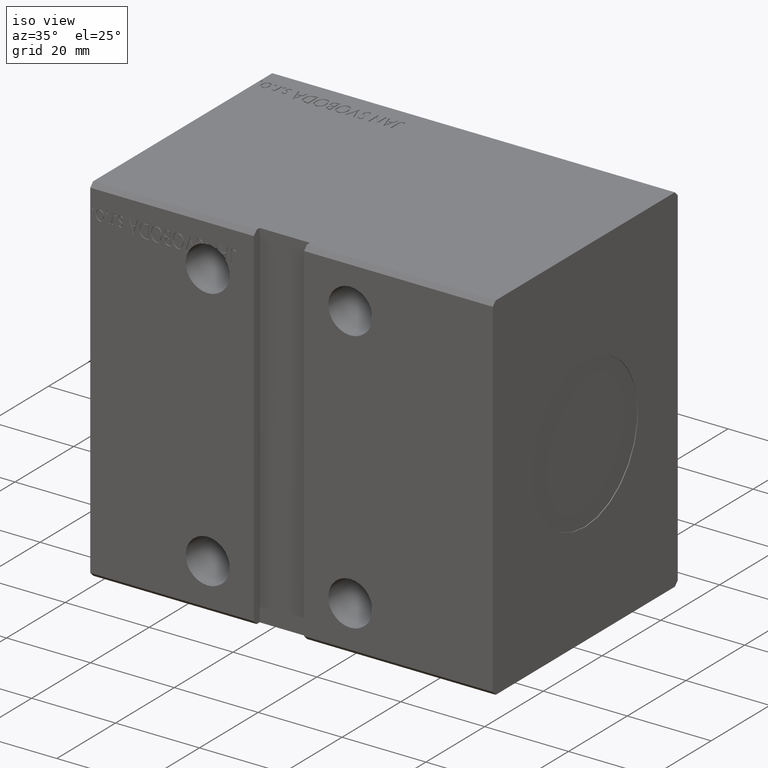
[diagram: clean part render]
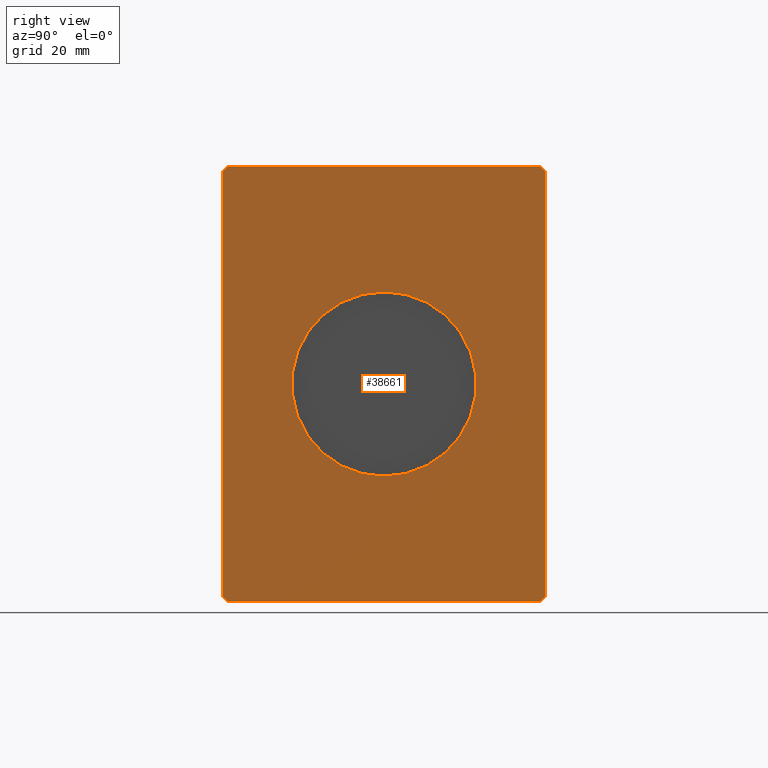
[diagram: tour spotlight — one face highlighted and labeled with its STEP entity id]
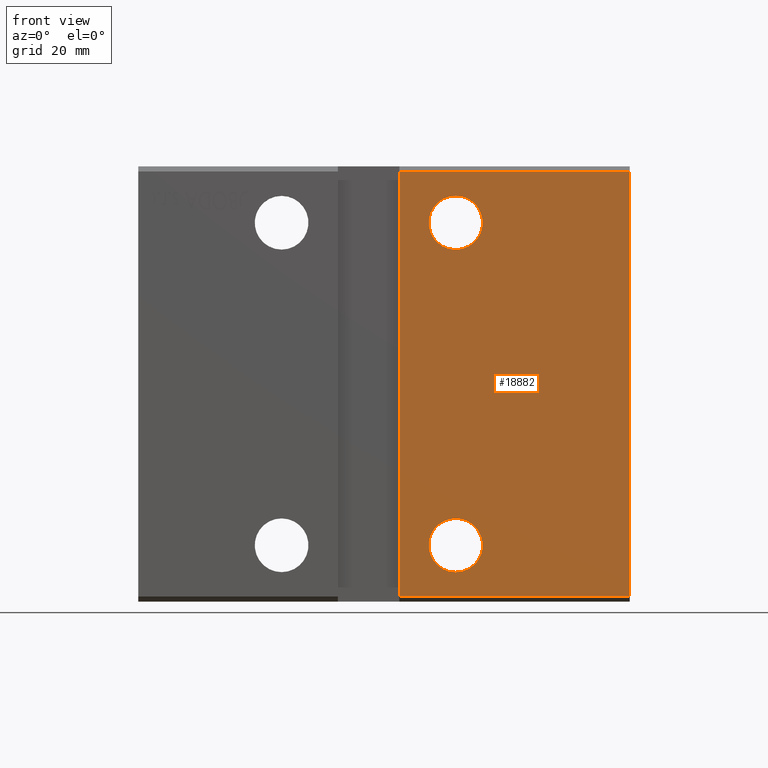
[diagram: tour spotlight — one face highlighted and labeled with its STEP entity id]
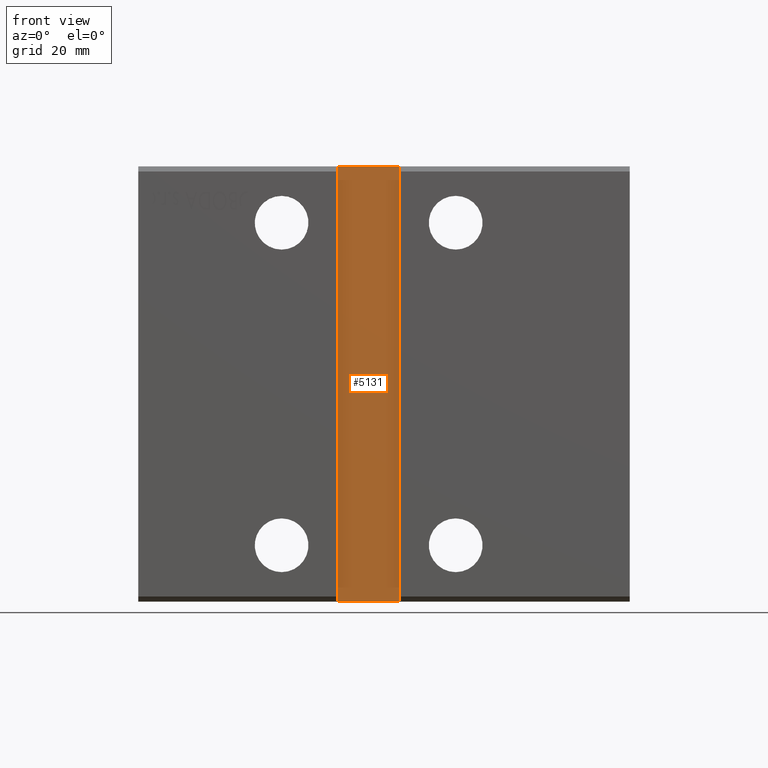
[diagram: tour spotlight — one face highlighted and labeled with its STEP entity id]
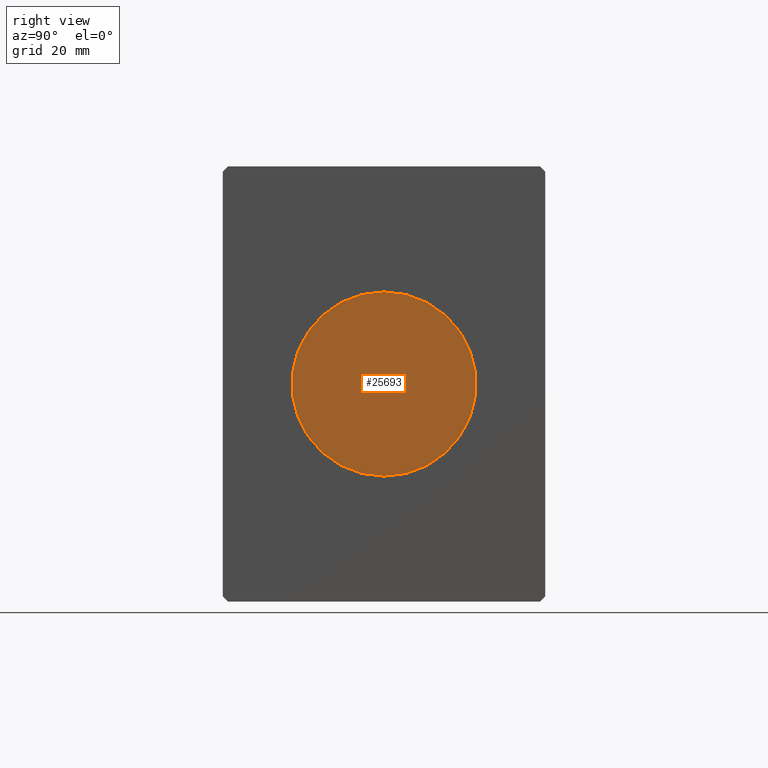
[diagram: tour spotlight — one face highlighted and labeled with its STEP entity id]
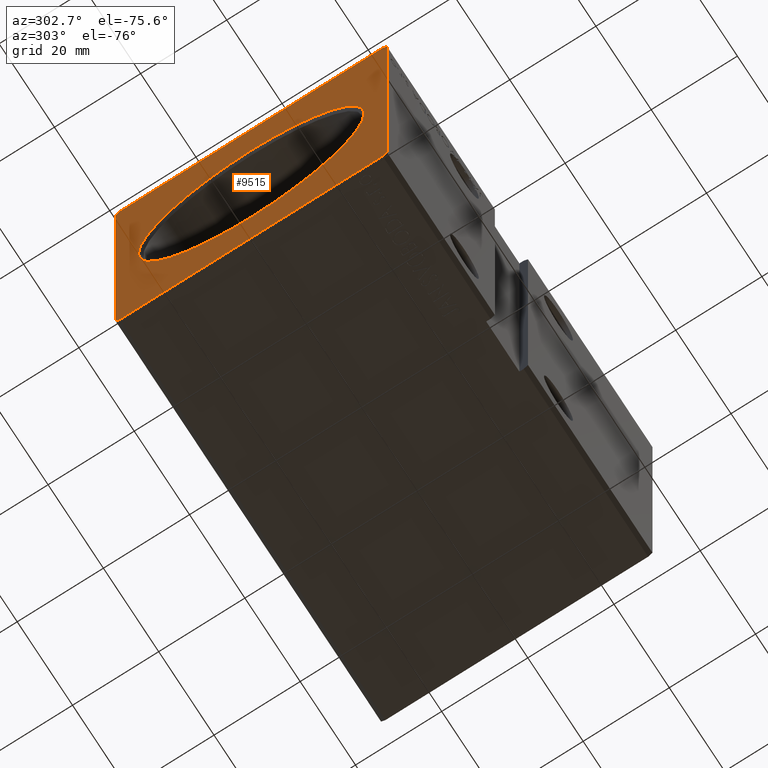
[diagram: tour spotlight — one face highlighted and labeled with its STEP entity id]
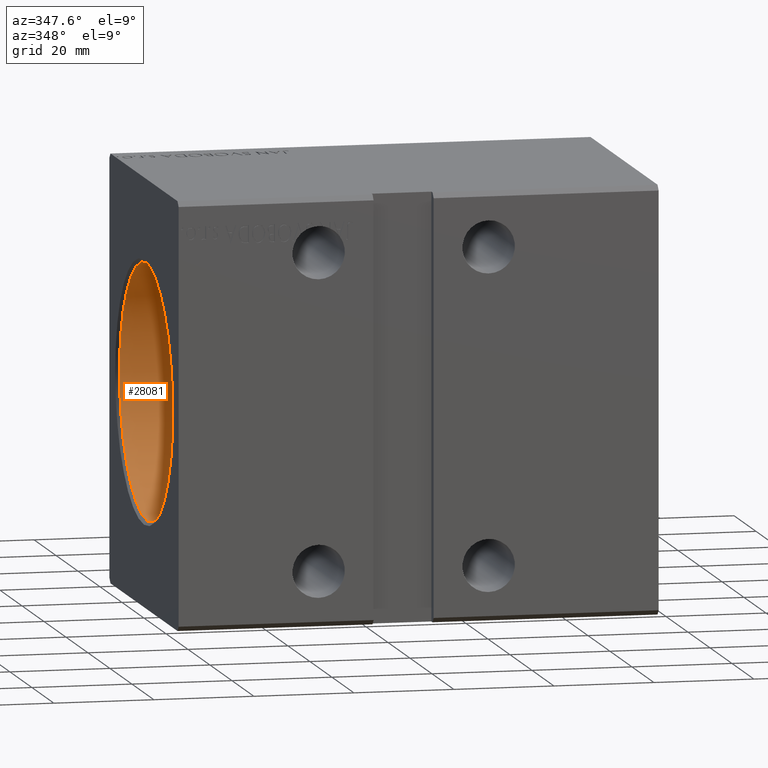
[diagram: tour spotlight — one face highlighted and labeled with its STEP entity id]
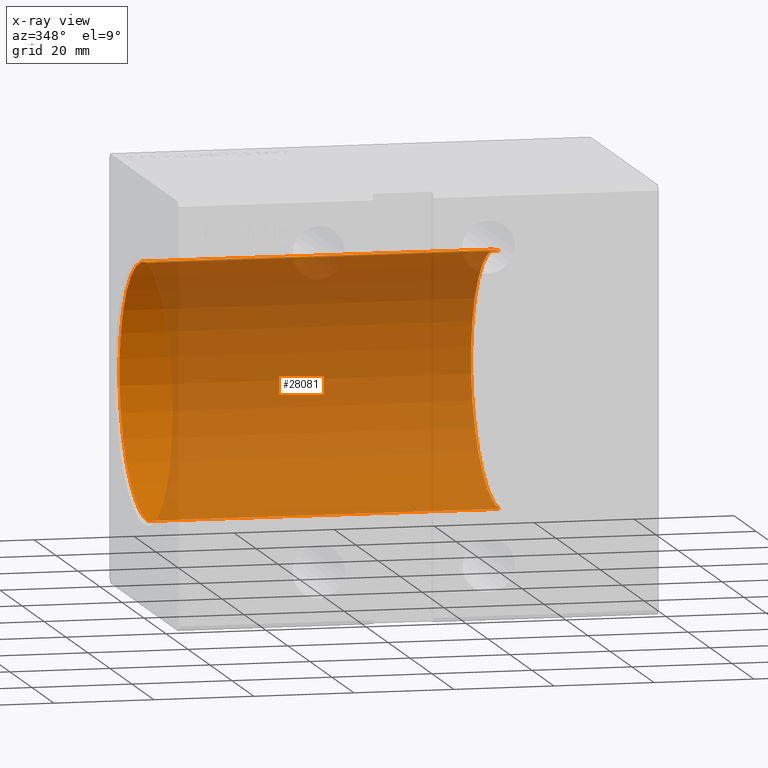
[diagram: x-ray of the same camera — body ghosted, this tour face saturated]
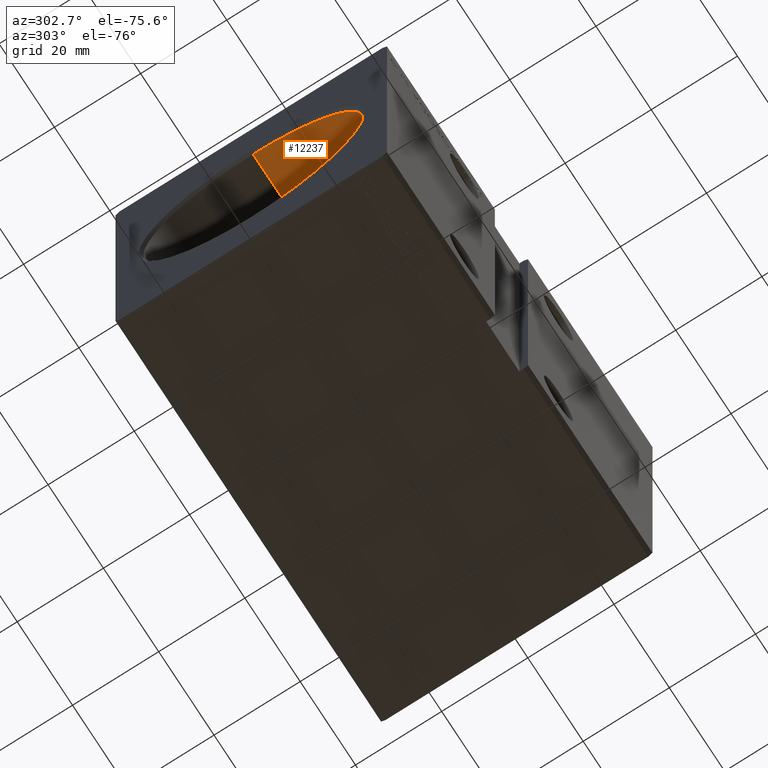
[diagram: tour spotlight — one face highlighted and labeled with its STEP entity id]
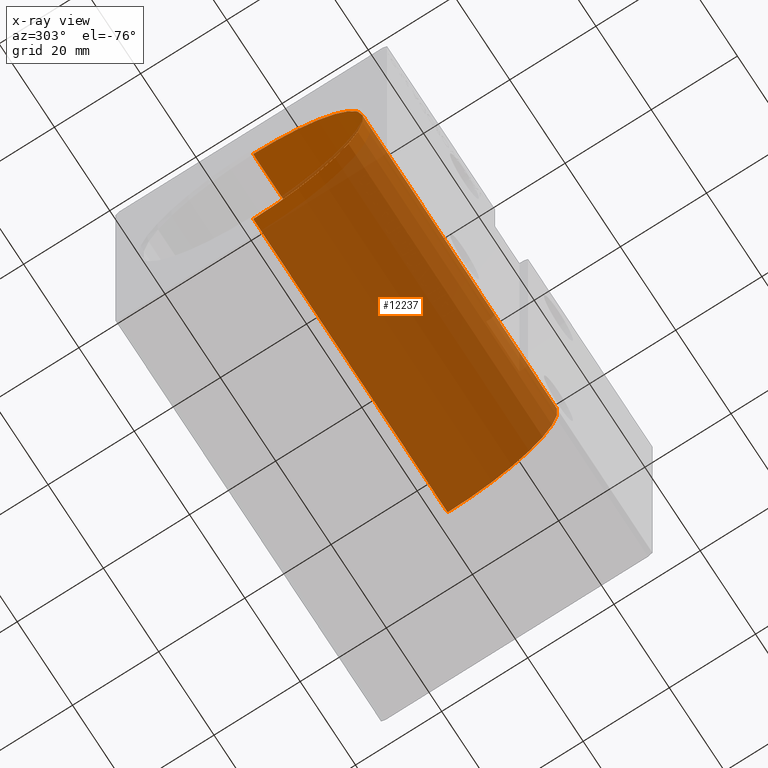
[diagram: x-ray of the same camera — body ghosted, this tour face saturated]
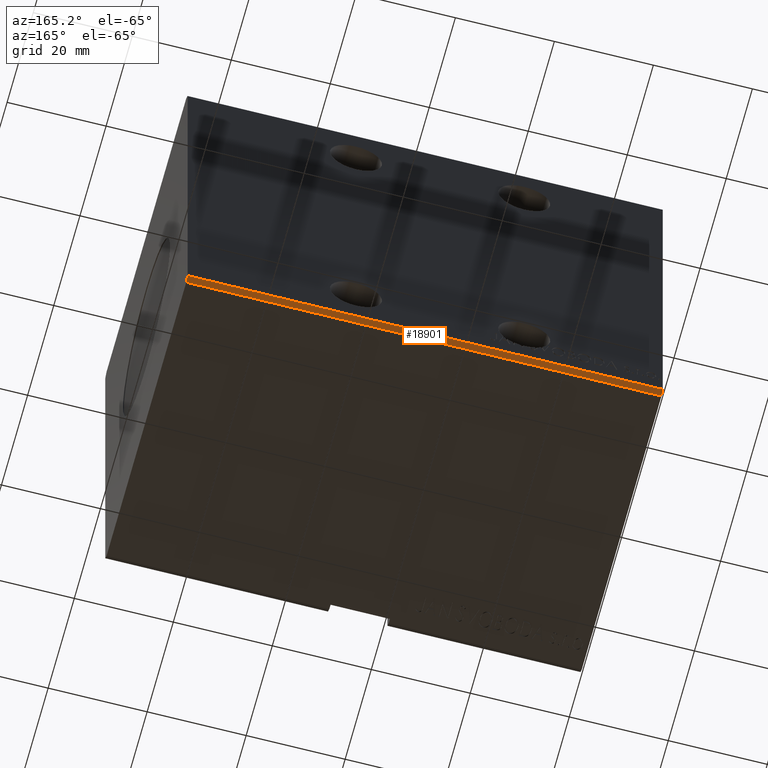
[diagram: tour spotlight — one face highlighted and labeled with its STEP entity id]
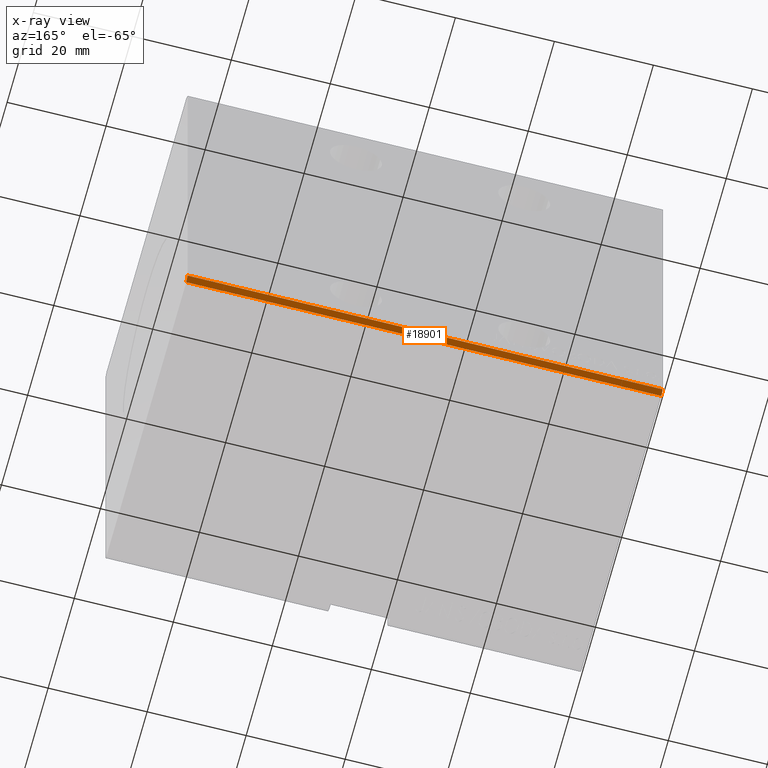
[diagram: x-ray of the same camera — body ghosted, this tour face saturated]
A machine part: a face-by-face anatomy tour. The part has 755 B-rep faces; the first image is the clean iso view, then the 8 largest visible faces are spotlighted one at a time (largest first), each with its STEP entity span.

Face 1 — right view, entity #38661. In plain terms, the highlighted planar face has unit normal (1, 0, 0).
Definition (entity closure, byte-faithful):
#281 = AXIS2_PLACEMENT_3D ( 'NONE', #39995, #6207, #21583 ) ;
#822 = VERTEX_POINT ( 'NONE', #25123 ) ;
#1911 = EDGE_CURVE ( 'NONE', #3032, #15900, #2587, .T. ) ;
#2118 = VERTEX_POINT ( 'NONE', #2344 ) ;
#2344 = CARTESIAN_POINT ( 'NONE',  ( 96.00000000000000000, 30.50000000000001421, 42.49999999999999289 ) ) ;
#2587 = LINE ( 'NONE', #36776, #24190 ) ;
#3032 = VERTEX_POINT ( 'NONE', #17837 ) ;
#4675 = CARTESIAN_POINT ( 'NONE',  ( 96.00000000000000000, -31.50000000000000000, 41.49999999999999289 ) ) ;
#4878 = LINE ( 'NONE', #11354, #6184 ) ;
#4896 = VECTOR ( 'NONE', #6964, 1000.000000000000000 ) ;
#4925 = AXIS2_PLACEMENT_3D ( 'NONE', #16355, #19397, #31137 ) ;
#5253 = DIRECTION ( 'NONE',  ( 0.000000000000000000, -0.7071067811865474617, 0.7071067811865474617 ) ) ;
#6075 = EDGE_CURVE ( 'NONE', #15900, #8573, #15465, .T. ) ;
#6091 = ORIENTED_EDGE ( 'NONE', *, *, #32495, .T. ) ;
#6158 = LINE ( 'NONE', #37328, #27493 ) ;
#6184 = VECTOR ( 'NONE', #23302, 1000.000000000000000 ) ;
#6207 = DIRECTION ( 'NONE',  ( 1.000000000000000000, 0.000000000000000000, 0.000000000000000000 ) ) ;
#6336 = ORIENTED_EDGE ( 'NONE', *, *, #8144, .F. ) ;
#6964 = DIRECTION ( 'NONE',  ( 0.000000000000000000, 1.000000000000000000, 0.000000000000000000 ) ) ;
#7809 = DIRECTION ( 'NONE',  ( 1.000000000000000000, 0.000000000000000000, 0.000000000000000000 ) ) ;
#7923 = CARTESIAN_POINT ( 'NONE',  ( 96.00000000000000000, 31.50000000000001421, 41.49999999999999289 ) ) ;
#8144 = EDGE_CURVE ( 'NONE', #31743, #822, #31414, .T. ) ;
#8573 = VERTEX_POINT ( 'NONE', #16220 ) ;
#9723 = CARTESIAN_POINT ( 'NONE',  ( 96.00000000000000000, 30.50000000000001776, -42.50000000000000711 ) ) ;
#9988 = VECTOR ( 'NONE', #37463, 999.9999999999998863 ) ;
#10603 = EDGE_CURVE ( 'NONE', #33563, #14110, #6158, .T. ) ;
#11354 = CARTESIAN_POINT ( 'NONE',  ( 96.00000000000000000, -31.50000000000000000, 41.49999999999999289 ) ) ;
#12518 = EDGE_CURVE ( 'NONE', #35869, #3032, #4878, .T. ) ;
#13561 = ORIENTED_EDGE ( 'NONE', *, *, #28572, .F. ) ;
#13884 = CARTESIAN_POINT ( 'NONE',  ( 96.00000000000000000, 0.000000000000000000, 0.000000000000000000 ) ) ;
#13888 = DIRECTION ( 'NONE',  ( 0.000000000000000000, -0.7071067811865462405, -0.7071067811865489050 ) ) ;
#14110 = VERTEX_POINT ( 'NONE', #7923 ) ;
#14157 = ORIENTED_EDGE ( 'NONE', *, *, #10603, .T. ) ;
#15465 = LINE ( 'NONE', #31649, #4896 ) ;
#15900 = VERTEX_POINT ( 'NONE', #21598 ) ;
#16220 = CARTESIAN_POINT ( 'NONE',  ( 96.00000000000000000, 30.50000000000001776, -42.50000000000000711 ) ) ;
#16355 = CARTESIAN_POINT ( 'NONE',  ( 96.00000000000000000, 0.000000000000000000, 0.000000000000000000 ) ) ;
#17679 = ORIENTED_EDGE ( 'NONE', *, *, #38961, .T. ) ;
#17837 = CARTESIAN_POINT ( 'NONE',  ( 96.00000000000000000, -31.50000000000000000, -41.50000000000000711 ) ) ;
#19017 = CARTESIAN_POINT ( 'NONE',  ( 96.00000000000000000, 30.50000000000001421, 42.49999999999999289 ) ) ;
#19161 = EDGE_CURVE ( 'NONE', #14110, #2118, #23282, .T. ) ;
#19397 = DIRECTION ( 'NONE',  ( 1.000000000000000000, 0.000000000000000000, 0.000000000000000000 ) ) ;
#20148 = AXIS2_PLACEMENT_3D ( 'NONE', #13884, #7809, #38761 ) ;
#20378 = VECTOR ( 'NONE', #5253, 1000.000000000000114 ) ;
#20733 = VERTEX_POINT ( 'NONE', #24382 ) ;
#21583 = DIRECTION ( 'NONE',  ( 0.000000000000000000, 0.000000000000000000, -1.000000000000000000 ) ) ;
#21598 = CARTESIAN_POINT ( 'NONE',  ( 96.00000000000000000, -30.50000000000000711, -42.50000000000000711 ) ) ;
#22077 = CIRCLE ( 'NONE', #20148, 18.00000000000000000 ) ;
#23282 = LINE ( 'NONE', #38842, #20378 ) ;
#23302 = DIRECTION ( 'NONE',  ( 0.000000000000000000, 0.000000000000000000, -1.000000000000000000 ) ) ;
#24190 = VECTOR ( 'NONE', #24632, 1000.000000000000114 ) ;
#24382 = CARTESIAN_POINT ( 'NONE',  ( 96.00000000000000000, -30.50000000000000355, 42.49999999999999289 ) ) ;
#24496 = DIRECTION ( 'NONE',  ( 0.000000000000000000, -1.000000000000000000, 0.000000000000000000 ) ) ;
#24632 = DIRECTION ( 'NONE',  ( 0.000000000000000000, 0.7071067811865451302, -0.7071067811865500152 ) ) ;
#25030 = FACE_BOUND ( 'NONE', #27612, .T. ) ;
#25119 = LINE ( 'NONE', #9723, #9988 ) ;
#25123 = CARTESIAN_POINT ( 'NONE',  ( 96.00000000000000000, 2.204364238465235428E-15, 18.00000000000000000 ) ) ;
#25664 = CARTESIAN_POINT ( 'NONE',  ( 96.00000000000000000, 31.50000000000001421, -41.50000000000000711 ) ) ;
#26838 = CARTESIAN_POINT ( 'NONE',  ( 96.00000000000000000, -30.50000000000000355, 42.49999999999999289 ) ) ;
#27493 = VECTOR ( 'NONE', #33685, 1000.000000000000000 ) ;
#27612 = EDGE_LOOP ( 'NONE', ( #6336, #13561 ) ) ;
#27809 = EDGE_LOOP ( 'NONE', ( #31588, #6091, #17679, #35709, #30736, #34254, #32191, #14157 ) ) ;
#28572 = EDGE_CURVE ( 'NONE', #822, #31743, #22077, .T. ) ;
#30736 = ORIENTED_EDGE ( 'NONE', *, *, #1911, .T. ) ;
#31137 = DIRECTION ( 'NONE',  ( 0.000000000000000000, 0.000000000000000000, -1.000000000000000000 ) ) ;
#31414 = CIRCLE ( 'NONE', #4925, 18.00000000000000000 ) ;
#31588 = ORIENTED_EDGE ( 'NONE', *, *, #19161, .T. ) ;
#31649 = CARTESIAN_POINT ( 'NONE',  ( 96.00000000000000000, -30.50000000000000711, -42.50000000000000711 ) ) ;
#31743 = VERTEX_POINT ( 'NONE', #34166 ) ;
#31956 = VECTOR ( 'NONE', #13888, 999.9999999999998863 ) ;
#32191 = ORIENTED_EDGE ( 'NONE', *, *, #38274, .T. ) ;
#32495 = EDGE_CURVE ( 'NONE', #2118, #20733, #34390, .T. ) ;
#32496 = LINE ( 'NONE', #26838, #31956 ) ;
#33563 = VERTEX_POINT ( 'NONE', #25664 ) ;
#33685 = DIRECTION ( 'NONE',  ( 0.000000000000000000, 0.000000000000000000, 1.000000000000000000 ) ) ;
#34166 = CARTESIAN_POINT ( 'NONE',  ( 96.00000000000000000, 0.000000000000000000, -18.00000000000000000 ) ) ;
#34254 = ORIENTED_EDGE ( 'NONE', *, *, #6075, .T. ) ;
#34324 = FACE_OUTER_BOUND ( 'NONE', #27809, .T. ) ;
#34390 = LINE ( 'NONE', #19017, #37008 ) ;
#35709 = ORIENTED_EDGE ( 'NONE', *, *, #12518, .T. ) ;
#35869 = VERTEX_POINT ( 'NONE', #4675 ) ;
#36776 = CARTESIAN_POINT ( 'NONE',  ( 96.00000000000000000, -31.50000000000000000, -41.50000000000000711 ) ) ;
#37008 = VECTOR ( 'NONE', #24496, 1000.000000000000000 ) ;
#37169 = PLANE ( 'NONE',  #281 ) ;
#37328 = CARTESIAN_POINT ( 'NONE',  ( 96.00000000000000000, 31.50000000000001421, -41.50000000000000711 ) ) ;
#37463 = DIRECTION ( 'NONE',  ( 0.000000000000000000, 0.7071067811865462405, 0.7071067811865489050 ) ) ;
#38274 = EDGE_CURVE ( 'NONE', #8573, #33563, #25119, .T. ) ;
#38661 = ADVANCED_FACE ( 'NONE', ( #25030, #34324 ), #37169, .T. ) ;
#38761 = DIRECTION ( 'NONE',  ( 0.000000000000000000, 0.000000000000000000, -1.000000000000000000 ) ) ;
#38842 = CARTESIAN_POINT ( 'NONE',  ( 96.00000000000000000, 31.50000000000001421, 41.49999999999999289 ) ) ;
#38961 = EDGE_CURVE ( 'NONE', #20733, #35869, #32496, .T. ) ;
#39995 = CARTESIAN_POINT ( 'NONE',  ( 96.00000000000000000, 0.000000000000000000, 0.000000000000000000 ) ) ;

Face 2 — front view, entity #18882. In plain terms, the highlighted planar face has unit normal (-0, 1, 0).
Definition (entity closure, byte-faithful):
#2280 = CARTESIAN_POINT ( 'NONE',  ( 62.00000000000000000, -31.50000000000000000, 36.75000000000000711 ) ) ;
#3032 = VERTEX_POINT ( 'NONE', #17837 ) ;
#3204 = DIRECTION ( 'NONE',  ( -8.163404592832032733E-17, -0.000000000000000000, 1.000000000000000000 ) ) ;
#4675 = CARTESIAN_POINT ( 'NONE',  ( 96.00000000000000000, -31.50000000000000000, 41.49999999999999289 ) ) ;
#4862 = CIRCLE ( 'NONE', #26255, 5.249999999999997335 ) ;
#4878 = LINE ( 'NONE', #11354, #6184 ) ;
#4906 = FACE_OUTER_BOUND ( 'NONE', #13778, .T. ) ;
#5343 = VERTEX_POINT ( 'NONE', #27263 ) ;
#5499 = FACE_BOUND ( 'NONE', #10590, .T. ) ;
#6184 = VECTOR ( 'NONE', #23302, 1000.000000000000000 ) ;
#6243 = CARTESIAN_POINT ( 'NONE',  ( 62.00000000000000000, -31.50000000000000000, 26.24999999999999645 ) ) ;
#7261 = CARTESIAN_POINT ( 'NONE',  ( 62.00000000000000711, -31.50000000000000000, -26.25000000000000355 ) ) ;
#8233 = CARTESIAN_POINT ( 'NONE',  ( 62.00000000000000000, -31.50000000000000000, 31.50000000000000000 ) ) ;
#8439 = ORIENTED_EDGE ( 'NONE', *, *, #26528, .F. ) ;
#9463 = CARTESIAN_POINT ( 'NONE',  ( 51.00000000000000000, -31.50000000000000000, 42.49999999999999289 ) ) ;
#10187 = CARTESIAN_POINT ( 'NONE',  ( 62.00000000000000711, -31.50000000000000000, -36.75000000000000000 ) ) ;
#10195 = CARTESIAN_POINT ( 'NONE',  ( 62.00000000000000711, -31.50000000000000000, -31.50000000000000000 ) ) ;
#10416 = CARTESIAN_POINT ( 'NONE',  ( 96.00000000000000000, -31.50000000000000000, 41.49999999999999289 ) ) ;
#10551 = AXIS2_PLACEMENT_3D ( 'NONE', #20380, #23822, #35960 ) ;
#10590 = EDGE_LOOP ( 'NONE', ( #14147, #39051 ) ) ;
#11026 = VERTEX_POINT ( 'NONE', #16804 ) ;
#11277 = CIRCLE ( 'NONE', #39058, 5.249999999999997335 ) ;
#11354 = CARTESIAN_POINT ( 'NONE',  ( 96.00000000000000000, -31.50000000000000000, 41.49999999999999289 ) ) ;
#11444 = VERTEX_POINT ( 'NONE', #10187 ) ;
#11947 = EDGE_CURVE ( 'NONE', #39584, #11444, #4862, .T. ) ;
#12518 = EDGE_CURVE ( 'NONE', #35869, #3032, #4878, .T. ) ;
#13151 = DIRECTION ( 'NONE',  ( 0.000000000000000000, -1.000000000000000000, -0.000000000000000000 ) ) ;
#13778 = EDGE_LOOP ( 'NONE', ( #31969, #24259, #8439, #29804 ) ) ;
#14147 = ORIENTED_EDGE ( 'NONE', *, *, #17260, .T. ) ;
#14807 = DIRECTION ( 'NONE',  ( 0.000000000000000000, -0.000000000000000000, 1.000000000000000000 ) ) ;
#16804 = CARTESIAN_POINT ( 'NONE',  ( 51.00000000000000711, -31.50000000000000000, -41.50000000000000711 ) ) ;
#17260 = EDGE_CURVE ( 'NONE', #11444, #39584, #11277, .T. ) ;
#17286 = CARTESIAN_POINT ( 'NONE',  ( 96.00000000000000000, -31.50000000000000000, -41.50000000000000711 ) ) ;
#17837 = CARTESIAN_POINT ( 'NONE',  ( 96.00000000000000000, -31.50000000000000000, -41.50000000000000711 ) ) ;
#17850 = CARTESIAN_POINT ( 'NONE',  ( 96.00000000000000000, -31.50000000000000000, 41.49999999999999289 ) ) ;
#18580 = LINE ( 'NONE', #9463, #36394 ) ;
#18882 = ADVANCED_FACE ( 'NONE', ( #5499, #4906, #26971 ), #36251, .F. ) ;
#19713 = DIRECTION ( 'NONE',  ( -0.000000000000000000, 1.000000000000000000, 0.000000000000000000 ) ) ;
#20380 = CARTESIAN_POINT ( 'NONE',  ( 62.00000000000000000, -31.50000000000000000, 31.50000000000000000 ) ) ;
#20819 = DIRECTION ( 'NONE',  ( -0.000000000000000000, 1.000000000000000000, 0.000000000000000000 ) ) ;
#21665 = AXIS2_PLACEMENT_3D ( 'NONE', #17850, #30192, #14807 ) ;
#22115 = EDGE_LOOP ( 'NONE', ( #31831, #29411 ) ) ;
#23302 = DIRECTION ( 'NONE',  ( 0.000000000000000000, 0.000000000000000000, -1.000000000000000000 ) ) ;
#23822 = DIRECTION ( 'NONE',  ( 0.000000000000000000, -1.000000000000000000, -0.000000000000000000 ) ) ;
#23987 = VECTOR ( 'NONE', #27001, 1000.000000000000000 ) ;
#24259 = ORIENTED_EDGE ( 'NONE', *, *, #33447, .F. ) ;
#25404 = AXIS2_PLACEMENT_3D ( 'NONE', #8233, #13151, #37840 ) ;
#26189 = DIRECTION ( 'NONE',  ( 0.000000000000000000, 0.000000000000000000, 1.000000000000000000 ) ) ;
#26255 = AXIS2_PLACEMENT_3D ( 'NONE', #10195, #19713, #26189 ) ;
#26528 = EDGE_CURVE ( 'NONE', #3032, #11026, #38730, .T. ) ;
#26971 = FACE_BOUND ( 'NONE', #22115, .T. ) ;
#27001 = DIRECTION ( 'NONE',  ( -1.000000000000000000, -0.000000000000000000, -0.000000000000000000 ) ) ;
#27263 = CARTESIAN_POINT ( 'NONE',  ( 51.00000000000000000, -31.50000000000000000, 41.49999999999999289 ) ) ;
#28003 = CIRCLE ( 'NONE', #10551, 5.250000000000004441 ) ;
#29411 = ORIENTED_EDGE ( 'NONE', *, *, #32526, .F. ) ;
#29804 = ORIENTED_EDGE ( 'NONE', *, *, #12518, .F. ) ;
#29912 = CIRCLE ( 'NONE', #25404, 5.250000000000004441 ) ;
#29929 = DIRECTION ( 'NONE',  ( 0.000000000000000000, 0.000000000000000000, 1.000000000000000000 ) ) ;
#30192 = DIRECTION ( 'NONE',  ( -0.000000000000000000, 1.000000000000000000, 0.000000000000000000 ) ) ;
#30328 = CARTESIAN_POINT ( 'NONE',  ( 62.00000000000000711, -31.50000000000000000, -31.50000000000000000 ) ) ;
#30564 = VECTOR ( 'NONE', #35107, 1000.000000000000000 ) ;
#31666 = VERTEX_POINT ( 'NONE', #6243 ) ;
#31831 = ORIENTED_EDGE ( 'NONE', *, *, #33637, .F. ) ;
#31969 = ORIENTED_EDGE ( 'NONE', *, *, #32851, .T. ) ;
#32526 = EDGE_CURVE ( 'NONE', #35707, #31666, #29912, .T. ) ;
#32851 = EDGE_CURVE ( 'NONE', #35869, #5343, #38146, .T. ) ;
#33447 = EDGE_CURVE ( 'NONE', #11026, #5343, #18580, .T. ) ;
#33637 = EDGE_CURVE ( 'NONE', #31666, #35707, #28003, .T. ) ;
#35107 = DIRECTION ( 'NONE',  ( -1.000000000000000000, -0.000000000000000000, -0.000000000000000000 ) ) ;
#35707 = VERTEX_POINT ( 'NONE', #2280 ) ;
#35869 = VERTEX_POINT ( 'NONE', #4675 ) ;
#35960 = DIRECTION ( 'NONE',  ( 0.000000000000000000, 0.000000000000000000, 1.000000000000000000 ) ) ;
#36251 = PLANE ( 'NONE',  #21665 ) ;
#36394 = VECTOR ( 'NONE', #3204, 1000.000000000000000 ) ;
#37840 = DIRECTION ( 'NONE',  ( 0.000000000000000000, 0.000000000000000000, 1.000000000000000000 ) ) ;
#38146 = LINE ( 'NONE', #10416, #30564 ) ;
#38730 = LINE ( 'NONE', #17286, #23987 ) ;
#39051 = ORIENTED_EDGE ( 'NONE', *, *, #11947, .T. ) ;
#39058 = AXIS2_PLACEMENT_3D ( 'NONE', #30328, #20819, #29929 ) ;
#39584 = VERTEX_POINT ( 'NONE', #7261 ) ;

Face 3 — front view, entity #5131. In plain terms, the highlighted planar face has unit normal (0, -1, 0).
Definition (entity closure, byte-faithful):
#523 = VERTEX_POINT ( 'NONE', #14415 ) ;
#2177 = CARTESIAN_POINT ( 'NONE',  ( 39.00000000000000000, -29.50000000000000000, 42.49999999999999289 ) ) ;
#5004 = EDGE_CURVE ( 'NONE', #32137, #25166, #34212, .T. ) ;
#5131 = ADVANCED_FACE ( 'NONE', ( #8886 ), #24065, .T. ) ;
#6757 = DIRECTION ( 'NONE',  ( -8.163404592832032733E-17, -0.000000000000000000, 1.000000000000000000 ) ) ;
#6799 = AXIS2_PLACEMENT_3D ( 'NONE', #33170, #26717, #18191 ) ;
#7387 = DIRECTION ( 'NONE',  ( 1.000000000000000000, 0.000000000000000000, 0.000000000000000000 ) ) ;
#7715 = VERTEX_POINT ( 'NONE', #7773 ) ;
#7752 = EDGE_LOOP ( 'NONE', ( #25526, #9180, #22890, #16282 ) ) ;
#7773 = CARTESIAN_POINT ( 'NONE',  ( 51.00000000000000711, -29.50000000000000000, -42.50000000000000711 ) ) ;
#8886 = FACE_OUTER_BOUND ( 'NONE', #7752, .T. ) ;
#9180 = ORIENTED_EDGE ( 'NONE', *, *, #5004, .T. ) ;
#14121 = DIRECTION ( 'NONE',  ( 1.632680918566406547E-16, 0.000000000000000000, -1.000000000000000000 ) ) ;
#14415 = CARTESIAN_POINT ( 'NONE',  ( 39.00000000000001421, -29.50000000000000000, -42.50000000000000711 ) ) ;
#14910 = VECTOR ( 'NONE', #6757, 1000.000000000000000 ) ;
#16282 = ORIENTED_EDGE ( 'NONE', *, *, #16944, .T. ) ;
#16944 = EDGE_CURVE ( 'NONE', #523, #7715, #37743, .T. ) ;
#17015 = LINE ( 'NONE', #29367, #14910 ) ;
#18191 = DIRECTION ( 'NONE',  ( 0.000000000000000000, -0.000000000000000000, -1.000000000000000000 ) ) ;
#19075 = VECTOR ( 'NONE', #19438, 1000.000000000000000 ) ;
#19438 = DIRECTION ( 'NONE',  ( -1.000000000000000000, -0.000000000000000000, -0.000000000000000000 ) ) ;
#20361 = EDGE_CURVE ( 'NONE', #25166, #523, #38803, .T. ) ;
#22777 = CARTESIAN_POINT ( 'NONE',  ( 39.00000000000001421, -29.50000000000000000, -42.50000000000000711 ) ) ;
#22890 = ORIENTED_EDGE ( 'NONE', *, *, #20361, .T. ) ;
#24065 = PLANE ( 'NONE',  #6799 ) ;
#24882 = EDGE_CURVE ( 'NONE', #7715, #32137, #17015, .T. ) ;
#25166 = VERTEX_POINT ( 'NONE', #35577 ) ;
#25526 = ORIENTED_EDGE ( 'NONE', *, *, #24882, .T. ) ;
#26717 = DIRECTION ( 'NONE',  ( 0.000000000000000000, -1.000000000000000000, 0.000000000000000000 ) ) ;
#29367 = CARTESIAN_POINT ( 'NONE',  ( 51.00000000000000000, -29.50000000000000000, 42.49999999999999289 ) ) ;
#30980 = CARTESIAN_POINT ( 'NONE',  ( 39.00000000000000000, -29.50000000000000000, 42.49999999999999289 ) ) ;
#31317 = VECTOR ( 'NONE', #7387, 1000.000000000000000 ) ;
#32137 = VERTEX_POINT ( 'NONE', #38918 ) ;
#32683 = VECTOR ( 'NONE', #14121, 1000.000000000000000 ) ;
#33170 = CARTESIAN_POINT ( 'NONE',  ( 0.000000000000000000, -29.50000000000000000, 1.101411730778925047E-16 ) ) ;
#34212 = LINE ( 'NONE', #30980, #19075 ) ;
#35577 = CARTESIAN_POINT ( 'NONE',  ( 39.00000000000000000, -29.50000000000000000, 42.49999999999999289 ) ) ;
#37743 = LINE ( 'NONE', #22777, #31317 ) ;
#38803 = LINE ( 'NONE', #2177, #32683 ) ;
#38918 = CARTESIAN_POINT ( 'NONE',  ( 51.00000000000000000, -29.50000000000000000, 42.49999999999999289 ) ) ;

Face 4 — right view, entity #25693. In plain terms, the highlighted planar face has unit normal (1, 0, 0).
Definition (entity closure, byte-faithful):
#5224 = DIRECTION ( 'NONE',  ( 1.000000000000000000, 0.000000000000000000, 0.000000000000000000 ) ) ;
#6155 = CIRCLE ( 'NONE', #28798, 18.00000000000000000 ) ;
#6377 = EDGE_CURVE ( 'NONE', #23827, #13467, #6155, .T. ) ;
#7371 = CARTESIAN_POINT ( 'NONE',  ( 95.79999999999999716, 0.000000000000000000, 0.000000000000000000 ) ) ;
#8097 = AXIS2_PLACEMENT_3D ( 'NONE', #13562, #37639, #34799 ) ;
#8470 = AXIS2_PLACEMENT_3D ( 'NONE', #7371, #34886, #25599 ) ;
#10317 = EDGE_CURVE ( 'NONE', #13467, #23827, #24883, .T. ) ;
#10929 = ORIENTED_EDGE ( 'NONE', *, *, #10317, .T. ) ;
#12841 = FACE_OUTER_BOUND ( 'NONE', #27662, .T. ) ;
#13467 = VERTEX_POINT ( 'NONE', #28685 ) ;
#13562 = CARTESIAN_POINT ( 'NONE',  ( 95.79999999999999716, 0.000000000000000000, 0.000000000000000000 ) ) ;
#14695 = CARTESIAN_POINT ( 'NONE',  ( 95.79999999999999716, 0.000000000000000000, -18.00000000000000000 ) ) ;
#20923 = ORIENTED_EDGE ( 'NONE', *, *, #6377, .T. ) ;
#23827 = VERTEX_POINT ( 'NONE', #14695 ) ;
#24883 = CIRCLE ( 'NONE', #8097, 18.00000000000000000 ) ;
#25599 = DIRECTION ( 'NONE',  ( 0.000000000000000000, 0.000000000000000000, -1.000000000000000000 ) ) ;
#25693 = ADVANCED_FACE ( 'NONE', ( #12841 ), #37527, .T. ) ;
#26893 = CARTESIAN_POINT ( 'NONE',  ( 95.79999999999999716, 0.000000000000000000, 0.000000000000000000 ) ) ;
#27662 = EDGE_LOOP ( 'NONE', ( #20923, #10929 ) ) ;
#28685 = CARTESIAN_POINT ( 'NONE',  ( 95.79999999999999716, 2.204364238465235428E-15, 18.00000000000000000 ) ) ;
#28798 = AXIS2_PLACEMENT_3D ( 'NONE', #26893, #5224, #35983 ) ;
#34799 = DIRECTION ( 'NONE',  ( 0.000000000000000000, 0.000000000000000000, -1.000000000000000000 ) ) ;
#34886 = DIRECTION ( 'NONE',  ( 1.000000000000000000, 0.000000000000000000, 0.000000000000000000 ) ) ;
#35983 = DIRECTION ( 'NONE',  ( 0.000000000000000000, 0.000000000000000000, -1.000000000000000000 ) ) ;
#37527 = PLANE ( 'NONE',  #8470 ) ;
#37639 = DIRECTION ( 'NONE',  ( 1.000000000000000000, 0.000000000000000000, 0.000000000000000000 ) ) ;

Face 5 — auxiliary view, entity #9515. In plain terms, the highlighted planar face has unit normal (1, 0, 0).
Definition (entity closure, byte-faithful):
#101 = CARTESIAN_POINT ( 'NONE',  ( 0.000000000000000000, -31.50000000000000000, -41.50000000000000711 ) ) ;
#3272 = CIRCLE ( 'NONE', #25904, 26.20000000000001350 ) ;
#3334 = EDGE_CURVE ( 'NONE', #31326, #31377, #35747, .T. ) ;
#4134 = DIRECTION ( 'NONE',  ( 1.000000000000000000, 0.000000000000000000, 0.000000000000000000 ) ) ;
#4143 = VECTOR ( 'NONE', #33471, 1000.000000000000000 ) ;
#4419 = VERTEX_POINT ( 'NONE', #9467 ) ;
#4749 = ORIENTED_EDGE ( 'NONE', *, *, #16020, .F. ) ;
#5243 = LINE ( 'NONE', #27100, #30593 ) ;
#7071 = DIRECTION ( 'NONE',  ( 1.000000000000000000, 0.000000000000000000, 0.000000000000000000 ) ) ;
#8388 = LINE ( 'NONE', #21129, #4143 ) ;
#8873 = LINE ( 'NONE', #39619, #35256 ) ;
#8911 = DIRECTION ( 'NONE',  ( 0.000000000000000000, 1.000000000000000000, 0.000000000000000000 ) ) ;
#9264 = VECTOR ( 'NONE', #33334, 1000.000000000000114 ) ;
#9379 = VERTEX_POINT ( 'NONE', #36639 ) ;
#9467 = CARTESIAN_POINT ( 'NONE',  ( 0.000000000000000000, 3.208574613766067271E-15, -26.20000000000001350 ) ) ;
#9515 = ADVANCED_FACE ( 'NONE', ( #22251, #34793 ), #25091, .F. ) ;
#9529 = ORIENTED_EDGE ( 'NONE', *, *, #37144, .F. ) ;
#10395 = CARTESIAN_POINT ( 'NONE',  ( 0.000000000000000000, 0.000000000000000000, 0.000000000000000000 ) ) ;
#10459 = EDGE_CURVE ( 'NONE', #36370, #13229, #8873, .T. ) ;
#10539 = ORIENTED_EDGE ( 'NONE', *, *, #36296, .T. ) ;
#11202 = DIRECTION ( 'NONE',  ( 0.000000000000000000, -1.000000000000000000, 0.000000000000000000 ) ) ;
#11351 = DIRECTION ( 'NONE',  ( 1.000000000000000000, 0.000000000000000000, 0.000000000000000000 ) ) ;
#13229 = VERTEX_POINT ( 'NONE', #26301 ) ;
#14187 = DIRECTION ( 'NONE',  ( 0.000000000000000000, 0.7071067811865462405, 0.7071067811865489050 ) ) ;
#14382 = CARTESIAN_POINT ( 'NONE',  ( 0.000000000000000000, 30.50000000000001776, -42.50000000000000711 ) ) ;
#15202 = CARTESIAN_POINT ( 'NONE',  ( 0.000000000000000000, -30.50000000000000711, -42.50000000000000711 ) ) ;
#15702 = LINE ( 'NONE', #18149, #9264 ) ;
#15776 = CARTESIAN_POINT ( 'NONE',  ( 0.000000000000000000, 0.000000000000000000, 0.000000000000000000 ) ) ;
#16020 = EDGE_CURVE ( 'NONE', #38100, #36370, #33249, .T. ) ;
#16447 = VERTEX_POINT ( 'NONE', #23460 ) ;
#17041 = CARTESIAN_POINT ( 'NONE',  ( 0.000000000000000000, 30.50000000000001776, -42.50000000000000711 ) ) ;
#17315 = ORIENTED_EDGE ( 'NONE', *, *, #26028, .F. ) ;
#18080 = ORIENTED_EDGE ( 'NONE', *, *, #35155, .F. ) ;
#18149 = CARTESIAN_POINT ( 'NONE',  ( 0.000000000000000000, 31.50000000000001421, 41.49999999999999289 ) ) ;
#18532 = DIRECTION ( 'NONE',  ( 0.000000000000000000, 0.7071067811865451302, -0.7071067811865500152 ) ) ;
#18759 = LINE ( 'NONE', #36231, #20117 ) ;
#20117 = VECTOR ( 'NONE', #8911, 1000.000000000000000 ) ;
#21124 = ORIENTED_EDGE ( 'NONE', *, *, #25049, .T. ) ;
#21129 = CARTESIAN_POINT ( 'NONE',  ( 0.000000000000000000, -31.50000000000000000, 41.49999999999999289 ) ) ;
#21407 = DIRECTION ( 'NONE',  ( 0.000000000000000000, -0.7071067811865462405, -0.7071067811865489050 ) ) ;
#21565 = VERTEX_POINT ( 'NONE', #36820 ) ;
#22251 = FACE_BOUND ( 'NONE', #32679, .T. ) ;
#22284 = VECTOR ( 'NONE', #18532, 1000.000000000000114 ) ;
#22372 = EDGE_CURVE ( 'NONE', #31315, #16447, #34887, .T. ) ;
#23460 = CARTESIAN_POINT ( 'NONE',  ( 0.000000000000000000, 31.50000000000001421, -41.50000000000000711 ) ) ;
#23487 = ORIENTED_EDGE ( 'NONE', *, *, #10459, .F. ) ;
#23675 = DIRECTION ( 'NONE',  ( 0.000000000000000000, 0.000000000000000000, 1.000000000000000000 ) ) ;
#25049 = EDGE_CURVE ( 'NONE', #4419, #21565, #3272, .T. ) ;
#25091 = PLANE ( 'NONE',  #25524 ) ;
#25524 = AXIS2_PLACEMENT_3D ( 'NONE', #15776, #7071, #28943 ) ;
#25787 = ORIENTED_EDGE ( 'NONE', *, *, #22372, .F. ) ;
#25904 = AXIS2_PLACEMENT_3D ( 'NONE', #32987, #11351, #27128 ) ;
#26028 = EDGE_CURVE ( 'NONE', #31377, #31315, #18759, .T. ) ;
#26051 = VECTOR ( 'NONE', #11202, 1000.000000000000000 ) ;
#26301 = CARTESIAN_POINT ( 'NONE',  ( 0.000000000000000000, -31.50000000000000000, 41.49999999999999289 ) ) ;
#26763 = CARTESIAN_POINT ( 'NONE',  ( 0.000000000000000000, -31.50000000000000000, -41.50000000000000711 ) ) ;
#27100 = CARTESIAN_POINT ( 'NONE',  ( 0.000000000000000000, 31.50000000000001421, -41.50000000000000711 ) ) ;
#27128 = DIRECTION ( 'NONE',  ( 0.000000000000000000, 0.000000000000000000, -1.000000000000000000 ) ) ;
#28534 = ORIENTED_EDGE ( 'NONE', *, *, #33321, .F. ) ;
#28943 = DIRECTION ( 'NONE',  ( 0.000000000000000000, 0.000000000000000000, -1.000000000000000000 ) ) ;
#29104 = ORIENTED_EDGE ( 'NONE', *, *, #3334, .F. ) ;
#29990 = AXIS2_PLACEMENT_3D ( 'NONE', #10395, #4134, #34690 ) ;
#30593 = VECTOR ( 'NONE', #23675, 1000.000000000000000 ) ;
#31315 = VERTEX_POINT ( 'NONE', #17041 ) ;
#31326 = VERTEX_POINT ( 'NONE', #26763 ) ;
#31377 = VERTEX_POINT ( 'NONE', #15202 ) ;
#32679 = EDGE_LOOP ( 'NONE', ( #10539, #21124 ) ) ;
#32833 = CARTESIAN_POINT ( 'NONE',  ( 0.000000000000000000, 30.50000000000001421, 42.49999999999999289 ) ) ;
#32987 = CARTESIAN_POINT ( 'NONE',  ( 0.000000000000000000, 0.000000000000000000, 0.000000000000000000 ) ) ;
#33249 = LINE ( 'NONE', #36282, #26051 ) ;
#33321 = EDGE_CURVE ( 'NONE', #16447, #9379, #5243, .T. ) ;
#33334 = DIRECTION ( 'NONE',  ( 0.000000000000000000, -0.7071067811865474617, 0.7071067811865474617 ) ) ;
#33431 = VECTOR ( 'NONE', #14187, 999.9999999999998863 ) ;
#33471 = DIRECTION ( 'NONE',  ( 0.000000000000000000, 0.000000000000000000, -1.000000000000000000 ) ) ;
#34267 = EDGE_LOOP ( 'NONE', ( #18080, #28534, #25787, #17315, #29104, #9529, #23487, #4749 ) ) ;
#34521 = CIRCLE ( 'NONE', #29990, 26.20000000000001350 ) ;
#34690 = DIRECTION ( 'NONE',  ( 0.000000000000000000, 0.000000000000000000, -1.000000000000000000 ) ) ;
#34793 = FACE_OUTER_BOUND ( 'NONE', #34267, .T. ) ;
#34882 = CARTESIAN_POINT ( 'NONE',  ( 0.000000000000000000, -30.50000000000000355, 42.49999999999999289 ) ) ;
#34887 = LINE ( 'NONE', #14382, #33431 ) ;
#35155 = EDGE_CURVE ( 'NONE', #9379, #38100, #15702, .T. ) ;
#35256 = VECTOR ( 'NONE', #21407, 999.9999999999998863 ) ;
#35747 = LINE ( 'NONE', #101, #22284 ) ;
#36231 = CARTESIAN_POINT ( 'NONE',  ( 0.000000000000000000, -30.50000000000000711, -42.50000000000000711 ) ) ;
#36282 = CARTESIAN_POINT ( 'NONE',  ( 0.000000000000000000, 30.50000000000001421, 42.49999999999999289 ) ) ;
#36296 = EDGE_CURVE ( 'NONE', #21565, #4419, #34521, .T. ) ;
#36370 = VERTEX_POINT ( 'NONE', #34882 ) ;
#36639 = CARTESIAN_POINT ( 'NONE',  ( 0.000000000000000000, 31.50000000000001421, 41.49999999999999289 ) ) ;
#36820 = CARTESIAN_POINT ( 'NONE',  ( 0.000000000000000000, 0.000000000000000000, 26.20000000000001350 ) ) ;
#37144 = EDGE_CURVE ( 'NONE', #13229, #31326, #8388, .T. ) ;
#38100 = VERTEX_POINT ( 'NONE', #32833 ) ;
#39619 = CARTESIAN_POINT ( 'NONE',  ( 0.000000000000000000, -30.50000000000000355, 42.49999999999999289 ) ) ;

Face 6 — auxiliary view, entity #28081. An x-ray twin of the same camera follows (body ghosted, this face saturated) — the face is partly hidden behind the body. In plain terms, the highlighted cylindrical surface (partial cylindrical patch) has radius 25.5 mm, axis along (-1, -0, -0).
Definition (entity closure, byte-faithful):
#1016 = LINE ( 'NONE', #28959, #13149 ) ;
#1331 = CARTESIAN_POINT ( 'NONE',  ( 0.7000000000000061728, 3.122849337825750222E-15, -25.50000000000000000 ) ) ;
#3766 = ORIENTED_EDGE ( 'NONE', *, *, #7749, .T. ) ;
#4093 = CARTESIAN_POINT ( 'NONE',  ( 71.00000000000000000, 0.000000000000000000, 0.000000000000000000 ) ) ;
#5618 = VERTEX_POINT ( 'NONE', #1331 ) ;
#7101 = ORIENTED_EDGE ( 'NONE', *, *, #29088, .T. ) ;
#7749 = EDGE_CURVE ( 'NONE', #9514, #5618, #29488, .T. ) ;
#8880 = VERTEX_POINT ( 'NONE', #17175 ) ;
#9514 = VERTEX_POINT ( 'NONE', #19222 ) ;
#10609 = DIRECTION ( 'NONE',  ( 0.000000000000000000, 0.000000000000000000, -1.000000000000000000 ) ) ;
#12975 = CARTESIAN_POINT ( 'NONE',  ( 71.00000000000000000, 0.000000000000000000, 0.000000000000000000 ) ) ;
#13039 = VECTOR ( 'NONE', #33002, 1000.000000000000000 ) ;
#13149 = VECTOR ( 'NONE', #35412, 1000.000000000000000 ) ;
#14517 = EDGE_LOOP ( 'NONE', ( #33265, #21329, #7101, #3766 ) ) ;
#16241 = EDGE_CURVE ( 'NONE', #8880, #17844, #39268, .T. ) ;
#16876 = CARTESIAN_POINT ( 'NONE',  ( 0.7000000000000061728, 0.000000000000000000, 0.000000000000000000 ) ) ;
#17175 = CARTESIAN_POINT ( 'NONE',  ( 71.00000000000000000, 0.000000000000000000, 25.50000000000000000 ) ) ;
#17422 = LINE ( 'NONE', #39664, #13039 ) ;
#17844 = VERTEX_POINT ( 'NONE', #38353 ) ;
#19222 = CARTESIAN_POINT ( 'NONE',  ( 0.7000000000000061728, 0.000000000000000000, 25.50000000000000000 ) ) ;
#19673 = DIRECTION ( 'NONE',  ( 0.000000000000000000, 0.000000000000000000, 1.000000000000000000 ) ) ;
#19853 = CYLINDRICAL_SURFACE ( 'NONE', #25284, 25.50000000000000000 ) ;
#21329 = ORIENTED_EDGE ( 'NONE', *, *, #16241, .F. ) ;
#25284 = AXIS2_PLACEMENT_3D ( 'NONE', #12975, #31993, #34419 ) ;
#27663 = AXIS2_PLACEMENT_3D ( 'NONE', #4093, #37893, #19673 ) ;
#28081 = ADVANCED_FACE ( 'NONE', ( #28971 ), #19853, .F. ) ;
#28959 = CARTESIAN_POINT ( 'NONE',  ( 71.00000000000000000, 3.122849337825750222E-15, -25.50000000000000000 ) ) ;
#28971 = FACE_OUTER_BOUND ( 'NONE', #14517, .T. ) ;
#29088 = EDGE_CURVE ( 'NONE', #8880, #9514, #17422, .T. ) ;
#29488 = CIRCLE ( 'NONE', #38528, 25.50000000000000000 ) ;
#31993 = DIRECTION ( 'NONE',  ( -1.000000000000000000, -0.000000000000000000, -0.000000000000000000 ) ) ;
#33002 = DIRECTION ( 'NONE',  ( -1.000000000000000000, -0.000000000000000000, -0.000000000000000000 ) ) ;
#33265 = ORIENTED_EDGE ( 'NONE', *, *, #34091, .F. ) ;
#34091 = EDGE_CURVE ( 'NONE', #17844, #5618, #1016, .T. ) ;
#34419 = DIRECTION ( 'NONE',  ( 0.000000000000000000, 0.000000000000000000, 1.000000000000000000 ) ) ;
#35412 = DIRECTION ( 'NONE',  ( -1.000000000000000000, -0.000000000000000000, -0.000000000000000000 ) ) ;
#35891 = DIRECTION ( 'NONE',  ( -1.000000000000000000, 0.000000000000000000, 0.000000000000000000 ) ) ;
#37893 = DIRECTION ( 'NONE',  ( -1.000000000000000000, 0.000000000000000000, 0.000000000000000000 ) ) ;
#38353 = CARTESIAN_POINT ( 'NONE',  ( 71.00000000000000000, 3.122849337825750222E-15, -25.50000000000000000 ) ) ;
#38528 = AXIS2_PLACEMENT_3D ( 'NONE', #16876, #35891, #10609 ) ;
#39268 = CIRCLE ( 'NONE', #27663, 25.50000000000000000 ) ;
#39664 = CARTESIAN_POINT ( 'NONE',  ( 71.00000000000000000, 0.000000000000000000, 25.50000000000000000 ) ) ;

Face 7 — auxiliary view, entity #12237. An x-ray twin of the same camera follows (body ghosted, this face saturated) — the face is partly hidden behind the body. In plain terms, the highlighted cylindrical surface (partial cylindrical patch) has radius 25.5 mm, axis along (-1, -0, -0).
Definition (entity closure, byte-faithful):
#314 = ORIENTED_EDGE ( 'NONE', *, *, #12299, .F. ) ;
#1016 = LINE ( 'NONE', #28959, #13149 ) ;
#1331 = CARTESIAN_POINT ( 'NONE',  ( 0.7000000000000061728, 3.122849337825750222E-15, -25.50000000000000000 ) ) ;
#5122 = DIRECTION ( 'NONE',  ( 0.000000000000000000, 0.000000000000000000, 1.000000000000000000 ) ) ;
#5618 = VERTEX_POINT ( 'NONE', #1331 ) ;
#8165 = FACE_OUTER_BOUND ( 'NONE', #13394, .T. ) ;
#8880 = VERTEX_POINT ( 'NONE', #17175 ) ;
#9342 = DIRECTION ( 'NONE',  ( -1.000000000000000000, 0.000000000000000000, 0.000000000000000000 ) ) ;
#9514 = VERTEX_POINT ( 'NONE', #19222 ) ;
#11392 = CARTESIAN_POINT ( 'NONE',  ( 0.7000000000000061728, 0.000000000000000000, 0.000000000000000000 ) ) ;
#11499 = EDGE_CURVE ( 'NONE', #5618, #9514, #20377, .T. ) ;
#11582 = DIRECTION ( 'NONE',  ( 0.000000000000000000, 0.000000000000000000, -1.000000000000000000 ) ) ;
#12237 = ADVANCED_FACE ( 'NONE', ( #8165 ), #14228, .F. ) ;
#12299 = EDGE_CURVE ( 'NONE', #17844, #8880, #28178, .T. ) ;
#12383 = CARTESIAN_POINT ( 'NONE',  ( 71.00000000000000000, 0.000000000000000000, 0.000000000000000000 ) ) ;
#13039 = VECTOR ( 'NONE', #33002, 1000.000000000000000 ) ;
#13149 = VECTOR ( 'NONE', #35412, 1000.000000000000000 ) ;
#13394 = EDGE_LOOP ( 'NONE', ( #314, #33074, #28449, #18098 ) ) ;
#14228 = CYLINDRICAL_SURFACE ( 'NONE', #33982, 25.50000000000000000 ) ;
#15817 = DIRECTION ( 'NONE',  ( 0.000000000000000000, 0.000000000000000000, 1.000000000000000000 ) ) ;
#17175 = CARTESIAN_POINT ( 'NONE',  ( 71.00000000000000000, 0.000000000000000000, 25.50000000000000000 ) ) ;
#17422 = LINE ( 'NONE', #39664, #13039 ) ;
#17844 = VERTEX_POINT ( 'NONE', #38353 ) ;
#18098 = ORIENTED_EDGE ( 'NONE', *, *, #29088, .F. ) ;
#19222 = CARTESIAN_POINT ( 'NONE',  ( 0.7000000000000061728, 0.000000000000000000, 25.50000000000000000 ) ) ;
#20377 = CIRCLE ( 'NONE', #26223, 25.50000000000000000 ) ;
#20507 = CARTESIAN_POINT ( 'NONE',  ( 71.00000000000000000, 0.000000000000000000, 0.000000000000000000 ) ) ;
#20690 = DIRECTION ( 'NONE',  ( -1.000000000000000000, 0.000000000000000000, 0.000000000000000000 ) ) ;
#26223 = AXIS2_PLACEMENT_3D ( 'NONE', #11392, #20690, #11582 ) ;
#28178 = CIRCLE ( 'NONE', #33347, 25.50000000000000000 ) ;
#28449 = ORIENTED_EDGE ( 'NONE', *, *, #11499, .T. ) ;
#28959 = CARTESIAN_POINT ( 'NONE',  ( 71.00000000000000000, 3.122849337825750222E-15, -25.50000000000000000 ) ) ;
#29088 = EDGE_CURVE ( 'NONE', #8880, #9514, #17422, .T. ) ;
#32843 = DIRECTION ( 'NONE',  ( -1.000000000000000000, -0.000000000000000000, -0.000000000000000000 ) ) ;
#33002 = DIRECTION ( 'NONE',  ( -1.000000000000000000, -0.000000000000000000, -0.000000000000000000 ) ) ;
#33074 = ORIENTED_EDGE ( 'NONE', *, *, #34091, .T. ) ;
#33347 = AXIS2_PLACEMENT_3D ( 'NONE', #12383, #9342, #15817 ) ;
#33982 = AXIS2_PLACEMENT_3D ( 'NONE', #20507, #32843, #5122 ) ;
#34091 = EDGE_CURVE ( 'NONE', #17844, #5618, #1016, .T. ) ;
#35412 = DIRECTION ( 'NONE',  ( -1.000000000000000000, -0.000000000000000000, -0.000000000000000000 ) ) ;
#38353 = CARTESIAN_POINT ( 'NONE',  ( 71.00000000000000000, 3.122849337825750222E-15, -25.50000000000000000 ) ) ;
#39664 = CARTESIAN_POINT ( 'NONE',  ( 71.00000000000000000, 0.000000000000000000, 25.50000000000000000 ) ) ;

Face 8 — auxiliary view, entity #18901. An x-ray twin of the same camera follows (body ghosted, this face saturated) — the face is partly hidden behind the body. In plain terms, the highlighted planar face has unit normal (0, -0.7071, 0.7071).
Definition (entity closure, byte-faithful):
#6385 = ORIENTED_EDGE ( 'NONE', *, *, #39853, .F. ) ;
#8390 = ORIENTED_EDGE ( 'NONE', *, *, #28987, .T. ) ;
#8573 = VERTEX_POINT ( 'NONE', #16220 ) ;
#9321 = DIRECTION ( 'NONE',  ( 0.000000000000000000, -0.7071067811865487940, 0.7071067811865462405 ) ) ;
#9723 = CARTESIAN_POINT ( 'NONE',  ( 96.00000000000000000, 30.50000000000001776, -42.50000000000000711 ) ) ;
#9988 = VECTOR ( 'NONE', #37463, 999.9999999999998863 ) ;
#10221 = LINE ( 'NONE', #29055, #11869 ) ;
#11869 = VECTOR ( 'NONE', #17089, 1000.000000000000000 ) ;
#14187 = DIRECTION ( 'NONE',  ( 0.000000000000000000, 0.7071067811865462405, 0.7071067811865489050 ) ) ;
#14382 = CARTESIAN_POINT ( 'NONE',  ( 0.000000000000000000, 30.50000000000001776, -42.50000000000000711 ) ) ;
#16002 = FACE_OUTER_BOUND ( 'NONE', #28721, .T. ) ;
#16220 = CARTESIAN_POINT ( 'NONE',  ( 96.00000000000000000, 30.50000000000001776, -42.50000000000000711 ) ) ;
#16447 = VERTEX_POINT ( 'NONE', #23460 ) ;
#16492 = DIRECTION ( 'NONE',  ( -1.000000000000000000, -0.000000000000000000, -0.000000000000000000 ) ) ;
#17041 = CARTESIAN_POINT ( 'NONE',  ( 0.000000000000000000, 30.50000000000001776, -42.50000000000000711 ) ) ;
#17089 = DIRECTION ( 'NONE',  ( -1.000000000000000000, -0.000000000000000000, -0.000000000000000000 ) ) ;
#18901 = ADVANCED_FACE ( 'NONE', ( #16002 ), #34026, .F. ) ;
#21044 = AXIS2_PLACEMENT_3D ( 'NONE', #33614, #9321, #24706 ) ;
#21915 = ORIENTED_EDGE ( 'NONE', *, *, #38274, .F. ) ;
#21952 = CARTESIAN_POINT ( 'NONE',  ( 96.00000000000000000, 30.50000000000001776, -42.50000000000000711 ) ) ;
#22152 = LINE ( 'NONE', #21952, #23392 ) ;
#22372 = EDGE_CURVE ( 'NONE', #31315, #16447, #34887, .T. ) ;
#23392 = VECTOR ( 'NONE', #16492, 1000.000000000000000 ) ;
#23460 = CARTESIAN_POINT ( 'NONE',  ( 0.000000000000000000, 31.50000000000001421, -41.50000000000000711 ) ) ;
#24706 = DIRECTION ( 'NONE',  ( 0.000000000000000000, -0.7071067811865462405, -0.7071067811865487940 ) ) ;
#25119 = LINE ( 'NONE', #9723, #9988 ) ;
#25664 = CARTESIAN_POINT ( 'NONE',  ( 96.00000000000000000, 31.50000000000001421, -41.50000000000000711 ) ) ;
#27957 = ORIENTED_EDGE ( 'NONE', *, *, #22372, .T. ) ;
#28721 = EDGE_LOOP ( 'NONE', ( #27957, #6385, #21915, #8390 ) ) ;
#28987 = EDGE_CURVE ( 'NONE', #8573, #31315, #22152, .T. ) ;
#29055 = CARTESIAN_POINT ( 'NONE',  ( 96.00000000000000000, 31.50000000000001421, -41.50000000000000711 ) ) ;
#31315 = VERTEX_POINT ( 'NONE', #17041 ) ;
#33431 = VECTOR ( 'NONE', #14187, 999.9999999999998863 ) ;
#33563 = VERTEX_POINT ( 'NONE', #25664 ) ;
#33614 = CARTESIAN_POINT ( 'NONE',  ( 96.00000000000000000, 30.50000000000001776, -42.50000000000000711 ) ) ;
#34026 = PLANE ( 'NONE',  #21044 ) ;
#34887 = LINE ( 'NONE', #14382, #33431 ) ;
#37463 = DIRECTION ( 'NONE',  ( 0.000000000000000000, 0.7071067811865462405, 0.7071067811865489050 ) ) ;
#38274 = EDGE_CURVE ( 'NONE', #8573, #33563, #25119, .T. ) ;
#39853 = EDGE_CURVE ( 'NONE', #33563, #16447, #10221, .T. ) ;